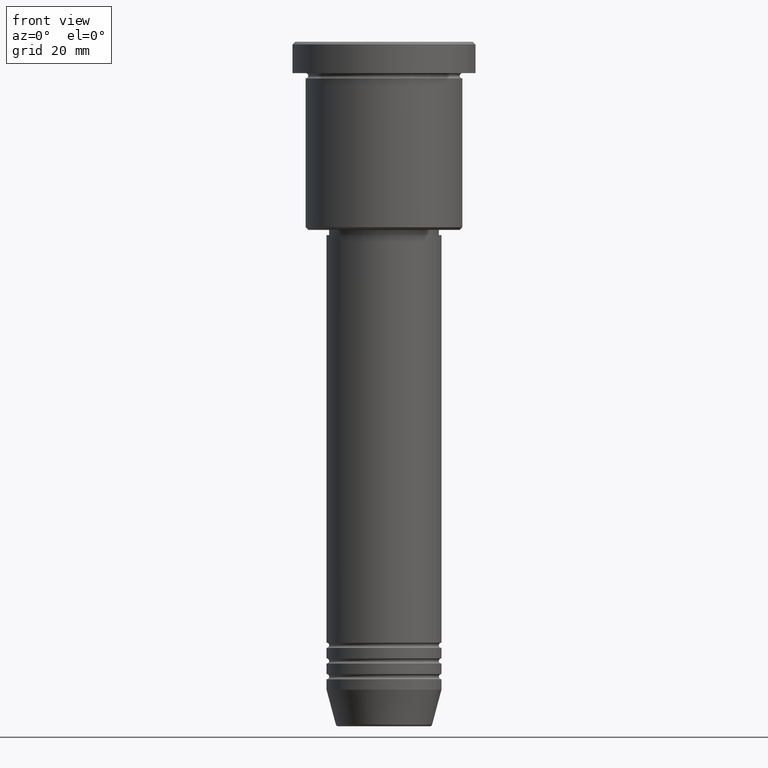
[diagram: clean part render]
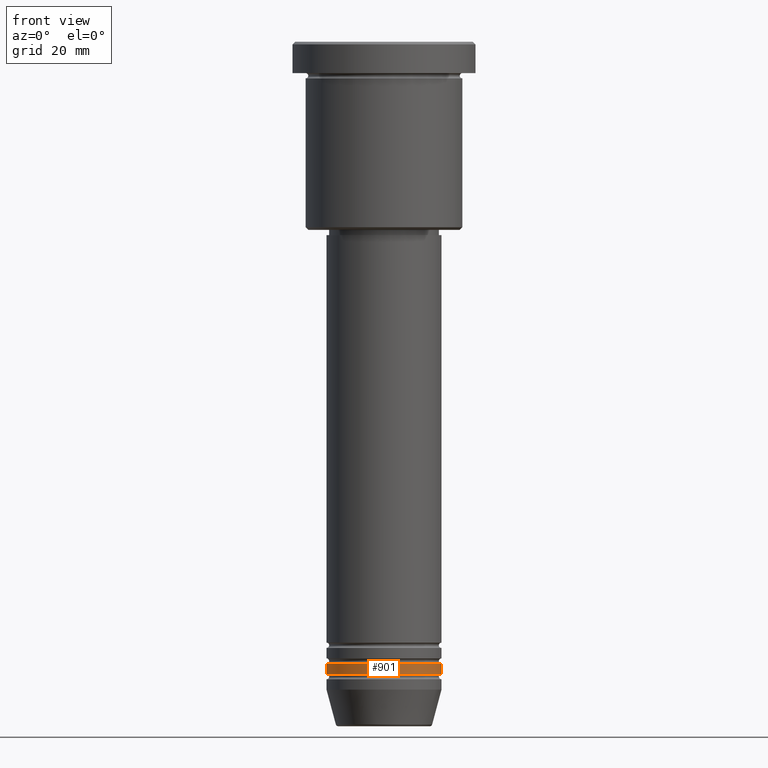
[diagram: same view with one face highlighted and labeled with its STEP entity id]
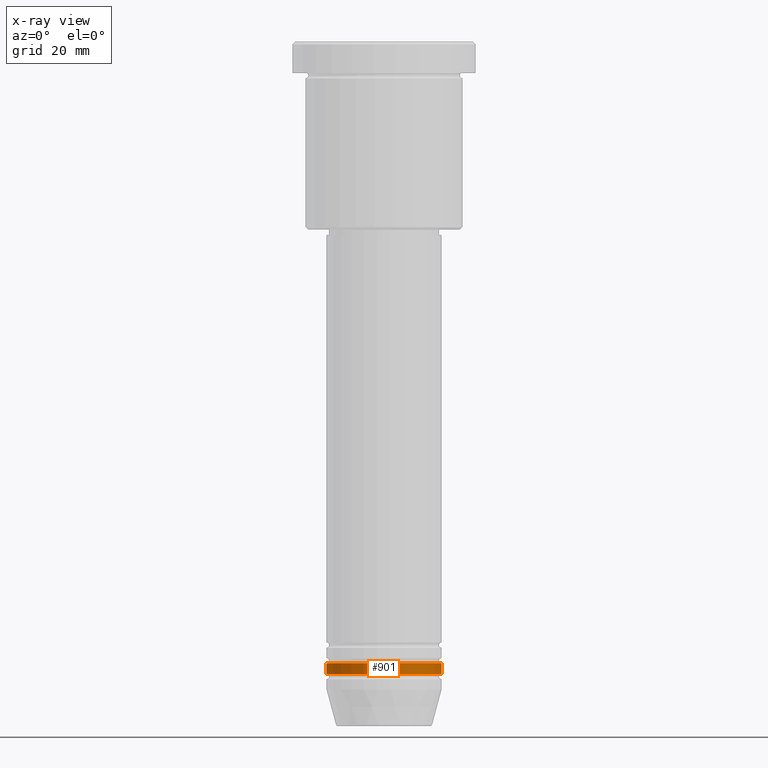
[diagram: x-ray of the same camera — body ghosted, the highlighted face saturated]
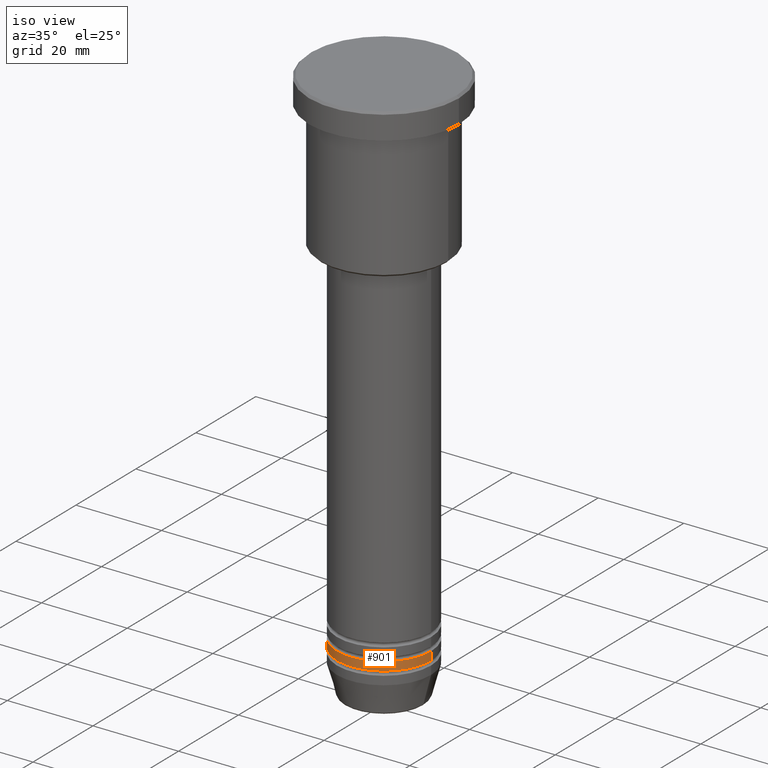
[diagram: same view with one face highlighted and labeled with its STEP entity id]
A machine part, front view. The second image highlights one B-rep face of the part: STEP entity #901.
The next image is the same camera in x-ray: the body ghosted, the highlighted face saturated — about 0% of this face is hidden behind the body in this view.
A second angle (iso view) of the same face is appended — the face is thin or edge-on in the first view.
In plain terms, the highlighted cylindrical surface (partial cylindrical patch) has radius 11 mm, axis along (-0, -0, 1).
Its self-contained STEP definition (entity closure, byte-faithful):
#14 = VECTOR ( 'NONE', #731, 1000.000000000000000 ) ;
#47 = FACE_OUTER_BOUND ( 'NONE', #949, .T. ) ;
#86 = VERTEX_POINT ( 'NONE', #916 ) ;
#144 = VERTEX_POINT ( 'NONE', #452 ) ;
#208 = CYLINDRICAL_SURFACE ( 'NONE', #1181, 11.00000000000000000 ) ;
#209 = VECTOR ( 'NONE', #357, 1000.000000000000000 ) ;
#300 = CIRCLE ( 'NONE', #1049, 11.00000000000000000 ) ;
#306 = CARTESIAN_POINT ( 'NONE',  ( 0.000000000000000000, 0.000000000000000000, -118.9999999999999858 ) ) ;
#309 = CARTESIAN_POINT ( 'NONE',  ( 0.000000000000000000, 0.000000000000000000, -120.9999999999999716 ) ) ;
#357 = DIRECTION ( 'NONE',  ( -0.000000000000000000, -0.000000000000000000, 1.000000000000000000 ) ) ;
#386 = AXIS2_PLACEMENT_3D ( 'NONE', #306, #395, #865 ) ;
#387 = DIRECTION ( 'NONE',  ( -0.000000000000000000, -0.000000000000000000, 1.000000000000000000 ) ) ;
#392 = EDGE_CURVE ( 'NONE', #837, #144, #409, .T. ) ;
#395 = DIRECTION ( 'NONE',  ( -0.000000000000000000, -0.000000000000000000, 1.000000000000000000 ) ) ;
#409 = LINE ( 'NONE', #681, #209 ) ;
#437 = ORIENTED_EDGE ( 'NONE', *, *, #967, .T. ) ;
#452 = CARTESIAN_POINT ( 'NONE',  ( 11.00000000000000000, 0.000000000000000000, -118.9999999999999858 ) ) ;
#453 = CARTESIAN_POINT ( 'NONE',  ( 11.00000000000000000, 0.000000000000000000, -120.9999999999999716 ) ) ;
#457 = CARTESIAN_POINT ( 'NONE',  ( -11.00000000000000000, 1.347111479062088405E-15, 0.000000000000000000 ) ) ;
#515 = EDGE_CURVE ( 'NONE', #86, #144, #655, .T. ) ;
#620 = ORIENTED_EDGE ( 'NONE', *, *, #515, .F. ) ;
#655 = CIRCLE ( 'NONE', #386, 11.00000000000000000 ) ;
#681 = CARTESIAN_POINT ( 'NONE',  ( 11.00000000000000000, 0.000000000000000000, 0.000000000000000000 ) ) ;
#720 = LINE ( 'NONE', #457, #14 ) ;
#731 = DIRECTION ( 'NONE',  ( -0.000000000000000000, -0.000000000000000000, 1.000000000000000000 ) ) ;
#755 = DIRECTION ( 'NONE',  ( 1.000000000000000000, 0.000000000000000000, 0.000000000000000000 ) ) ;
#768 = CARTESIAN_POINT ( 'NONE',  ( -11.00000000000000000, 1.347111479062088405E-15, -120.9999999999999716 ) ) ;
#837 = VERTEX_POINT ( 'NONE', #453 ) ;
#856 = DIRECTION ( 'NONE',  ( -0.000000000000000000, -0.000000000000000000, 1.000000000000000000 ) ) ;
#865 = DIRECTION ( 'NONE',  ( 1.000000000000000000, 0.000000000000000000, 0.000000000000000000 ) ) ;
#868 = DIRECTION ( 'NONE',  ( 1.000000000000000000, 0.000000000000000000, 0.000000000000000000 ) ) ;
#885 = VERTEX_POINT ( 'NONE', #768 ) ;
#901 = ADVANCED_FACE ( 'NONE', ( #47 ), #208, .T. ) ;
#916 = CARTESIAN_POINT ( 'NONE',  ( -11.00000000000000000, 1.347111479062088405E-15, -118.9999999999999858 ) ) ;
#949 = EDGE_LOOP ( 'NONE', ( #1043, #437, #999, #620 ) ) ;
#967 = EDGE_CURVE ( 'NONE', #885, #837, #300, .T. ) ;
#999 = ORIENTED_EDGE ( 'NONE', *, *, #392, .T. ) ;
#1035 = CARTESIAN_POINT ( 'NONE',  ( 0.000000000000000000, 0.000000000000000000, 0.000000000000000000 ) ) ;
#1043 = ORIENTED_EDGE ( 'NONE', *, *, #1177, .F. ) ;
#1049 = AXIS2_PLACEMENT_3D ( 'NONE', #309, #387, #755 ) ;
#1177 = EDGE_CURVE ( 'NONE', #885, #86, #720, .T. ) ;
#1181 = AXIS2_PLACEMENT_3D ( 'NONE', #1035, #856, #868 ) ;